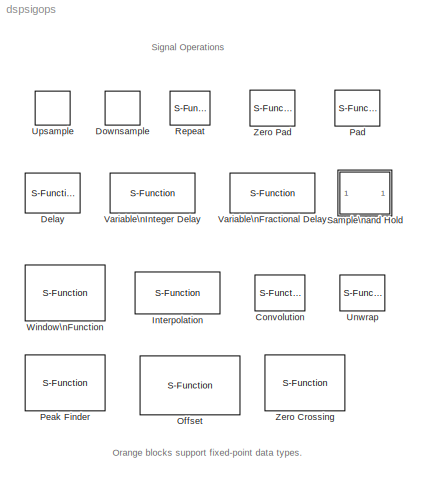
MODEL dspsigops
KIND library
BLOCK [S-Function] Convolution
  CopyFcn = dspfixptcopycallback
  DialogController = dspDDGCreate
  DialogControllerArgs = DataTag0
  FunctionName = sdspconvcorr
  MaskCallbackString = ||||||||||||||
  MaskDescription = Convolve two inputs. The block computes in the time domain or frequency domain.  To minimize the number of computations, select \"Fastest\" in the Computation domain parameter. To minimize memory use, select \"Time\" in the Computation domain parameter.
  MaskDisplay = disp('CONV')
  MaskEnableString = on,off,off,on,on,on,on,on,on,on,on,on,on,on,on
  MaskHelp = web(dspbhelp);
  MaskIconFrame = on
  MaskIconOpaque = on
  MaskIconRotate = none
  MaskIconUnits = autoscale
  MaskInitialization = dtInfo = dspblkconvcorr('init');\n\n
  MaskPromptString = Computation domain: |------- Show additional parameters -------|Allow overrides from DSP Fixed-Point Attributes blocks|Fixed-point output attributes:|Output word length:|Output fraction length:|Fixed-point accumulator attributes:|Accumulator word length:|Accumulator fraction length:|Fixed-point product output attributes:|Product output word length:|Product output fraction length:|Round integer cal...<+59ch>
  MaskSelfModifiable = on
  MaskStyleString = popup(Time|Frequency|Fastest),checkbox,checkbox,popup(Same as accumulator|Same as product output|Same as first input|Binary point scaling|Slope and bias scaling|User-defined),edit,edit,popup(Inherit via internal rule|Same as product output|Same as first input|Binary point scaling|Slope and bias scaling|User-defined),edit,edit,popup(Inherit via internal rule|Same as first input|Binary point scaling...<+86ch>
  MaskTabNameString = ,,,,,,,,,,,,,,
  MaskToolTipString = on,on,on,on,on,on,on,on,on,on,on,on,on,on,on
  MaskTunableValueString = off,off,off,off,off,off,off,off,off,off,off,off,off,off,off
  MaskType = Convolution
  MaskValueString = Time|off|on|Same as accumulator|16|15|Inherit via internal rule|32|30|Inherit via internal rule|32|30|Floor|off|off
  MaskVarAliasString = ,,,,,,,,,,,,,,
  MaskVariables = domain=@1;additionalParams=@2;allowOverrides=@3;outputMode=@4;outputWordLength=@5;outputFracLength=@6;accumMode=@7;accumWordLength=@8;accumFracLength=@9;prodOutputMode=@10;prodOutputWordLength=@11;prodOutputFracLength=@12;roundingMode=@13;overflowMode=@14;LockScale=@15;
  MaskVisibilityString = on,off,off,on,on,on,on,on,on,on,on,on,on,on,on
  Parameters = domain,0,dtInfo.prodOutputMode,dtInfo.prodOutputWordLength,dtInfo.prodOutputFracLength,dtInfo.accumMode,dtInfo.accumWordLength,dtInfo.accumFracLength,dtInfo.outputMode,dtInfo.outputWordLength,dtInfo.outputFracLength,dtInfo.roundingMode,dtInfo.overflowMode
  Ports = [2, 1]
BLOCK [S-Function] Delay
  CopyFcn = dspfixptcopycallback
  FunctionName = sdspdelay
  MaskCallbackString = dspblkdelay||dspblkdelay('icDetail')||||
  MaskDescription = Delay the discrete-time input by a specified number of samples or frames. To specify the initial conditions, select the Show additional parameters check box.
  MaskDisplay = text(0.42-dx, 0.4, 'z'); text(0.5-dx, 0.6, str);\nport_label('input',s.i1,s.i1s);\nport_label('input',s.i2,s.i2s);\n
  MaskEnableString = on,on,on,on,on,on,on
  MaskHelp = web(dspbhelp);
  MaskIconFrame = on
  MaskIconOpaque = on
  MaskIconRotate = none
  MaskIconUnits = normalized
  MaskInitialization = if (~iscell(ic)) \n	ic = double(ic);\nend	\n[str, ic] = dspblkdelay('init',&1,double(delay), ic);\ndx = 0.01*length(str);\nreset = reset_popup-1;\nif (reset == 0)\n	s.i1 = 1; s.i1s = '';\n	s.i2 = 1; s.i2s = '';\nelse\n	s.i1 = 1; s.i1s = 'In';\n	s.i2 = 2; s.i2s = 'Rst';\nend
  MaskPromptString = Delay units:|Delay (samples):|--------------- Show additional parameters ---------------|Specify different initial conditions for each channel|Specify different initial conditions within a channel|Initial conditions:|Reset port:
  MaskSelfModifiable = on
  MaskStyleString = popup(Samples|Frames),edit,checkbox,checkbox,checkbox,edit,popup(None|Rising edge|Falling edge|Either edge|Non-zero sample)
  MaskTabNameString = ,,,,,,
  MaskToolTipString = on,on,on,on,on,on,on
  MaskTunableValueString = off,off,off,off,off,off,off
  MaskType = Delay
  MaskValueString = Sample|1|off|off|off|0|None
  MaskVarAliasString = ,,,,,,
  MaskVariables = dly_unit=@1;delay=@2;ic_detail=@3;dif_ic_for_ch=@4;dif_ic_for_dly=@5;ic=@6;reset_popup=@7;
  MaskVisibilityString = on,on,on,off,off,off,off
  Parameters = dly_unit, delay, ic_detail, dif_ic_for_ch, dif_ic_for_dly, ic, reset
  Ports = [1, 1]
BLOCK [S-Function] Downsample
  CopyFcn = dspfixptcopycallback
  FunctionName = sdspdsamp2
  MaskCallbackString = ||||
  MaskDescription = Downsample by an integer  factor.  Optional sample offset must be an integer value in range (0, K-1).
  MaskDisplay = plot(x,y);\ntext(.6,.4,s);
  MaskEnableString = on,on,on,on,on
  MaskHelp = web(dspbhelp);
  MaskIconFrame = on
  MaskIconOpaque = on
  MaskIconRotate = none
  MaskIconUnits = autoscale
  MaskInitialization = [s,x,y] = dspblkdsamp2('icon',N, &1);
  MaskPromptString = Downsample factor, K:|Sample offset (0 to K-1):|Initial condition:|Sample-based mode:|Frame-based mode:
  MaskSelfModifiable = on
  MaskStyleString = edit,edit,edit,popup(Allow multirate|Force single rate),popup(Maintain input frame size|Maintain input frame rate)
  MaskTabNameString = ,,,,
  MaskToolTipString = on,on,on,on,on
  MaskTunableValueString = off,off,off,off,off
  MaskType = Downsample
  MaskValueString = 2|0|0|Allow multirate|Maintain input frame size
  MaskVarAliasString = ,,,,
  MaskVariables = N=@1;phase=@2;ic=@3;smode=@4;fmode=@5;
  MaskVisibilityString = on,on,on,on,on
  Parameters = N,phase,ic,smode,fmode
  Ports = [1, 1]
BLOCK [S-Function] Interpolation
  FunctionName = sdspinterp
  MaskCallbackString = dspblkinterp||dspblkinterp||||
  MaskDescription = Interpolate values between real-valued input samples using linear or FIR interpolation.\n\nSpecify which values to interpolate by providing a vector of interpolation points. An interpolation point of 1 refers to the first sample in the input.  To interpolate the value half-way between the second and third sample in the input, specify an interpolation point of 2.5.\n\nYou can provide the vector of ...<+187ch>
  MaskDisplay = disp('Interp')\nport_label('input',ports.port1, ports.txt1);\nport_label('input',ports.port2, ports.txt2);\nport_label('output',ports.port3, ports.txt3);\n
  MaskEnableString = on,on,on,off,off,off,on
  MaskHelp = web(dspbhelp)
  MaskIconFrame = on
  MaskIconOpaque = on
  MaskIconRotate = none
  MaskIconUnits = normalized
  MaskInitialization = ports = dspblkinterp('icon');\ninterpFilter = dspblkinterp('init', InterpR, InterpL, InterpAlpha);\n
  MaskPromptString = Source of interpolation points:|Interpolation points:|Interpolation mode:|Interpolation filter half-length:|Interpolation points per input sample:|Normalized input bandwidth (0 to 1):|Out of range interpolation points:
  MaskSelfModifiable = on
  MaskStyleString = popup(Specify via dialog|Input port),edit,popup(Linear|FIR),edit,edit,edit,popup(Clip|Clip and warn|Error)
  MaskTabNameString = ,,,,,,
  MaskToolTipString = on,on,on,on,on,on,on
  MaskTunableValueString = off,on,off,off,off,off,off
  MaskType = Interpolation
  MaskValueString = Specify via dialog|[1.1 4.8 2.67 1.6 3.2]'|Linear|3|3|0.5|Clip
  MaskVarAliasString = ,,,,,,
  MaskVariables = InterpSource=@1;InterpPoints=@2;InterpMode=@3;InterpL=@4;InterpR=@5;InterpAlpha=@6;InvalidMode=@7;
  MaskVisibilityString = on,on,on,on,on,on,on
  Parameters = InterpSource,InterpPoints,InterpMode,interpFilter,InvalidMode
  Ports = [1, 1]
BLOCK [S-Function] Offset
  CopyFcn = dspfixptcopycallback
  FunctionName = sdspoffset
  MaskCallbackString = ||dspblkoffset;||
  MaskDescription = Truncates input vectors by removing or keeping beginning or ending values. The resulting vectors are either truncated again or zero-padded to a user-specified output length.
  MaskDisplay = port_label('input',1, 'In1'); port_label('output',1, 'Out1'); port_label('input',2, 'O1'); port_label('input',3, 'In2'); port_label('output',2, 'Out2'); port_label('input',4, 'O2'); disp('Offset');
  MaskEnableString = on,on,on,off,on
  MaskHelp = web(dspbhelp);
  MaskIconFrame = on
  MaskIconOpaque = on
  MaskIconRotate = none
  MaskIconUnits = normalized
  MaskInitialization = dspblkoffset(numDatOffPair);
  MaskPromptString = Mode:|Number of input data-offset pairs:|Output port length:|Output length:|Action for out of range offset value:
  MaskSelfModifiable = on
  MaskStyleString = popup(Remove beginning samples|Remove ending samples|Keep beginning samples|Keep ending samples),edit,popup(Same as input|User-defined),edit,popup(Clip|Clip and warn|Error)
  MaskTabNameString = ,,,,
  MaskToolTipString = on,on,on,on,on
  MaskTunableValueString = off,off,on,off,off
  MaskType = Offset
  MaskValueString = Remove beginning samples|2|Same as input|9|Clip
  MaskVarAliasString = ,,,,
  MaskVariables = mode=@1;numDatOffPair=@2;outWidthSpec=@3;outWidth=@4;actionOutRange=@5;
  MaskVisibilityString = on,on,on,off,on
  Parameters = mode,numDatOffPair,outWidthSpec,outWidth,actionOutRange
  Ports = [4, 2]
BLOCK [S-Function] Pad
  CopyFcn = dspfixptcopycallback
  FunctionName = sdsppad
  MaskCallbackString = ||dspblkpad|dspblkpad||dspblkpad||
  MaskDescription = Append or prepend a constant value to the input along specified dimensions.  Truncation will occur if the specified number of output rows and/or columns is less than the corresponding input signal dimensions.
  MaskDisplay = plot(0,0,100,100,[51 44 44 51],[92 92 8 8],[73 80 80 73],[92 92 8 8],[56 68],[80 80],[56 68],[72 72],[56 68],[64 64],[56 68],[56 56],[56 68],[48 48],[56 68],[40 40],[24 24 40 36 40 36],[52 24 24 28 24 20]);\nplot([56 68],[20 20]);\nplot([58 66],[12 28],[58 66],[28 12]);
  MaskEnableString = on,on,on,on,on,off,off,on
  MaskHelp = web(dspbhelp);
  MaskIconFrame = on
  MaskIconOpaque = on
  MaskIconRotate = none
  MaskIconUnits = autoscale
  MaskPromptString = Value:|Pad signal at:|Pad along:|Number of output rows:|Specified number of output rows:|Number of output columns:|Specified number of output columns:|Action when truncation occurs:
  MaskSelfModifiable = on
  MaskStyleString = edit,popup(End|Beginning),popup(Columns|Rows|Columns and rows|None),popup(User-specified|Next power of two),edit,popup(User-specified|Next power of two),edit,popup(None|Warning|Error)
  MaskTabNameString = ,,,,,,,
  MaskToolTipString = on,on,on,on,on,on,on,on
  MaskTunableValueString = on,off,off,off,off,off,off,off
  MaskType = Pad
  MaskValueString = 1|End|Columns|User-specified|1|User-specified|1|None
  MaskVarAliasString = ,,,,,,,
  MaskVariables = padVal=@1;padSigAt=@2;padAlong=@3;padNumOutRowsSpecMethod=@4;numOutRows=@5;padNumOutColsSpecMethod=@6;numOutCols=@7;trunc_flag=@8;
  MaskVisibilityString = on,on,on,on,on,on,on,on
  Parameters = padSigAt, padAlong, numOutRows, numOutCols, padVal, trunc_flag, padNumOutRowsSpecMethod, padNumOutColsSpecMethod
  Ports = [1, 1]
BLOCK [S-Function] Peak Finder
  CopyFcn = dspfixptcopycallback
  DialogController = dspDDGCreate
  DialogControllerArgs = DataTag1
  FunctionName = sdsppeaks
  MaskCallbackString = |||||||||
  MaskDescription = Output the number of extrema (maxima and minima) in an input signal. \n\nOptionally, the block can output the extrema indices, the extrema values, \nand a binary indicator of whether or not the extrema are maxima or minima.
  MaskDisplay = disp(['Find\\n',s.txt]);\nport_label('output',s.i1,s.s1);\nport_label('output',s.i2,s.s2);\nport_label('output',1,'Cnt');\nport_label('output',s.i3,s.s3);
  MaskEnableString = on,on,on,on,on,on,off,off,on,on
  MaskHelp = web(dspbhelp)
  MaskIconFrame = on
  MaskIconOpaque = on
  MaskIconRotate = none
  MaskIconUnits = autoscale
  MaskInitialization = [s, dtInfo] = dspblkpeaks('icon',outputIdx,outputVal,polarity);\nroundingMode   = dtInfo.roundingMode;\noverflowMode   = dtInfo.overflowMode;
  MaskPromptString = Peak types:|Output peak indices|Output peak values|Maximum number of peaks to find:|Ignore peaks within threshold of neighboring values|Threshold|-------------- Show additional parameters ---------------|Allow overrides from DSP Fixed-Point Attributes blocks|Round integer calculations toward:|Saturate on integer overflow
  MaskSelfModifiable = on
  MaskStyleString = popup(Maxima|Minima|Maxima and Minima),checkbox,checkbox,edit,checkbox,edit,checkbox,checkbox,popup(Floor|Nearest),checkbox
  MaskTabNameString = ,,,,,,,,,
  MaskToolTipString = on,on,on,on,on,on,on,on,on,on
  MaskTunableValueString = on,on,on,on,on,on,off,off,off,off
  MaskType = Peak Finder
  MaskValueString = Maxima and Minima|off|off|10|off|0|off|off|Floor|off
  MaskVarAliasString = ,,,,,,,,,
  MaskVariables = polarity=@1;outputIdx=@2;outputVal=@3;maxPeaks=@4;NoiseDistinguish=@5;thresh=@6;additionalParams=@7;allowOverrides=@8;roundingMode=@9;overflowMode=@10;
  MaskVisibilityString = on,on,on,on,on,on,off,off,on,on
  Parameters = maxPeaks,polarity,NoiseDistinguish,thresh,outputIdx,outputVal,roundingMode,overflowMode
  Ports = [1, 1]
BLOCK [S-Function] Repeat
  CopyFcn = dspfixptcopycallback
  FunctionName = sdsprepeat2
  MaskCallbackString = ||
  MaskDescription = Repeat input samples N times.
  MaskDisplay = disp(s);
  MaskEnableString = on,on,on
  MaskHelp = web(dspbhelp);
  MaskIconFrame = on
  MaskIconOpaque = on
  MaskIconRotate = none
  MaskIconUnits = autoscale
  MaskInitialization = s = dspblkrepeat2('icon',N, &1);
  MaskPromptString = Repetition count:|Initial conditions:|Frame-based mode:
  MaskSelfModifiable = on
  MaskStyleString = edit,edit,popup(Maintain input frame size|Maintain input frame rate)
  MaskTabNameString = ,,
  MaskToolTipString = on,on,on
  MaskTunableValueString = off,off,off
  MaskType = Repeat
  MaskValueString = 5|0|Maintain input frame size
  MaskVarAliasString = ,,
  MaskVariables = N=@1;ic=@2;mode=@3;
  MaskVisibilityString = on,on,on
  Parameters = N,ic,mode
  Ports = [1, 1]
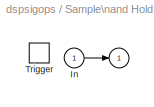
BLOCK [SubSystem] Sample\nand Hold
  CopyFcn = dspfixptcopycallback
  MaskCallbackString = |
  MaskDescription = Sample and hold input signal.
  MaskDisplay = disp('S/H')
  MaskEnableString = on,on
  MaskHelp = web(dspbhelp);
  MaskIconFrame = on
  MaskIconOpaque = off
  MaskIconRotate = none
  MaskIconUnits = autoscale
  MaskInitialization = switch trig\ncase 1, s='rising';\ncase 2, s='falling';\ncase 3, s='either';\nend\nset_param([gcb '/Trigger'],'triggertype',s);\n
  MaskPromptString = Trigger type:|Initial condition:
  MaskSelfModifiable = on
  MaskStyleString = popup(Rising edge|Falling edge|Either edge),edit
  MaskTabNameString = ,
  MaskToolTipString = on,on
  MaskTunableValueString = off,off
  MaskType = Sample and Hold
  MaskValueString = Rising edge|0
  MaskVarAliasString = ,
  MaskVariables = trig=@1;initCond=@2;
  MaskVisibilityString = on,on
  MinAlgLoopOccurrences = off
  Ports = [1, 1, 0, 1]
  PropExecContextAcrossSSBoundary = on
  RTWSystemCode = Auto
  TreatAsAtomicUnit = on
BLOCK [Outport] Sample\nand Hold/ 
  BusOutputAsStruct = off
  IconDisplay = Port number
  InitialOutput = initCond
BLOCK [Inport] Sample\nand Hold/In
  IconDisplay = Port number
  LatchInput = off
BLOCK [TriggerPort] Sample\nand Hold/Trigger
  Ports = []
  ZeroCross = off
BLOCK [S-Function] Unwrap
  FunctionName = sdspunwrap2
  MaskCallbackString = |
  MaskDescription = Adds or subtracts appropriate multiples of 2pi to each input element to \nremove phase discontinuities (unwrap). Inputs should be radian phase values.\n\nWhen the parameter \"Do not unwrap phase discontinuities between successive frames\" is unchecked, the block unwraps each input channel by considering all phase discontinuities in the channel, including those in previous frames of the channel. (F...<+409ch>
  MaskDisplay = plot(0,0,100,100,[16 16],[92 8],[8 92],[16 16],[16 48 48 80],[64 44 76 56],[64 64 58 64 70],[60 40 46 40 46],[69 82],[30 22],[],[],[52 65],[41 33])
  MaskEnableString = on,on
  MaskHelp = web(dspbhelp);
  MaskIconFrame = on
  MaskIconOpaque = on
  MaskIconRotate = none
  MaskIconUnits = autoscale
  MaskPromptString = Do not unwrap phase discontinuities between successive frames|Tolerance (radians):
  MaskStyleString = checkbox,edit
  MaskTabNameString = ,
  MaskToolTipString = on,on
  MaskTunableValueString = off,off
  MaskType = Unwrap
  MaskValueString = off|pi
  MaskVarAliasString = ,
  MaskVariables = running=@1;tol=@2;
  MaskVisibilityString = on,on
  Parameters = tol, running
  Ports = [1, 1]
BLOCK [S-Function] Upsample
  CopyFcn = dspfixptcopycallback
  FunctionName = sdspupsamp2
  MaskCallbackString = |||
  MaskDescription = Upsample by inserting L-1 zeros between input samples.  Optional sample offset must be an integer value in range (0, L-1).
  MaskDisplay = plot(x,y)\ntext(.6,.4,s);\n
  MaskEnableString = on,on,on,on
  MaskHelp = web(dspbhelp);
  MaskIconFrame = on
  MaskIconOpaque = on
  MaskIconRotate = none
  MaskIconUnits = autoscale
  MaskInitialization = [s,x,y] = dspblkupsamp2('icon',N, &1);
  MaskPromptString = Upsample factor, L:|Sample offset (0 to L-1):|Initial condition:|Frame-based mode:
  MaskSelfModifiable = on
  MaskStyleString = edit,edit,edit,popup(Maintain input frame size|Maintain input frame rate)
  MaskTabNameString = ,,,
  MaskToolTipString = on,on,on,on
  MaskTunableValueString = off,off,off,off
  MaskType = Upsample
  MaskValueString = 3|0|0|Maintain input frame size
  MaskVarAliasString = ,,,
  MaskVariables = N=@1;phase=@2;ic=@3;mode=@4;
  MaskVisibilityString = on,on,on,on
  Parameters = N,phase,ic,mode
  Ports = [1, 1]
BLOCK [S-Function] Variable\nFractional Delay
  FunctionName = sdspvfdly2
  MaskCallbackString = dspblkvfdly2;|||||
  MaskDescription = Delay discrete-time input by a time-varying fractional number of sample periods, as specified by the \"delay\" input.  The FIR filter is designed using \"intfilt\" from the Signal Processing Toolbox.
  MaskDisplay = text(0.5,0.4,'z','horiz','right')\ntext(0.5,0.6,'-f','horiz','left')\nport_label('input',1,'In')\nport_label('input',2,'Delay')\nport_label('output',1,'Out')\n
  MaskEnableString = on,on,on,on,on,on
  MaskHelp = web(dspbhelp);
  MaskIconFrame = on
  MaskIconOpaque = on
  MaskIconRotate = none
  MaskIconUnits = normalized
  MaskInitialization = [b,str] = dspblkvfdly2(mode,R,L,alpha);\n
  MaskPromptString = Mode:|Maximum delay (samples):|Interpolation filter half-length:|Interpolation points per input sample:|Normalized input bandwidth (0 to 1):|Initial conditions:
  MaskStyleString = popup(Linear Interpolation|FIR Interpolation),edit,edit,edit,edit,edit
  MaskTabNameString = ,,,,,
  MaskToolTipString = on,on,on,on,on,on
  MaskTunableValueString = off,off,off,off,off,off
  MaskType = Variable Fractional Delay
  MaskValueString = Linear Interpolation|100|4|10|1|0
  MaskVarAliasString = ,,,,,
  MaskVariables = mode=@1;dmax=@2;L=@3;R=@4;alpha=@5;ic=@6;
  MaskVisibilityString = on,on,off,off,off,on
  Parameters = mode,dmax,b,ic
  Ports = [2, 1]
BLOCK [S-Function] Variable\nInteger Delay
  CopyFcn = dspfixptcopycallback
  FunctionName = sdspvidly2
  MaskCallbackString = |
  MaskDescription = Delay discrete-time input by a time-varying integer number of sample periods specified by the \"delay\" input.
  MaskDisplay = text(0.5,0.4,'z','horiz','right')\ntext(0.5,0.6,'-i','horiz','left')\nport_label('input',1,'In')\nport_label('input',2,'Delay')\nport_label('output',1,'Out')\n
  MaskEnableString = on,on
  MaskHelp = web(dspbhelp);
  MaskIconFrame = on
  MaskIconOpaque = on
  MaskIconRotate = none
  MaskIconUnits = normalized
  MaskPromptString = Maximum delay (samples):|Initial conditions:
  MaskSelfModifiable = on
  MaskStyleString = edit,edit
  MaskTabNameString = ,
  MaskToolTipString = on,on
  MaskTunableValueString = off,off
  MaskType = Variable Integer Delay
  MaskValueString = 100|0
  MaskVarAliasString = ,
  MaskVariables = dmax=@1;ic=@2;
  MaskVisibilityString = on,on
  Parameters = dmax,ic
  Ports = [2, 1]
BLOCK [S-Function] Window\nFunction
  CopyFcn = dspfixptcopycallback
  DialogController = dspDDGCreate
  DialogControllerArgs = DataTag2
  FunctionName = sdspwindow2
  MaskCallbackString = ||||||||||||||||||||||||||||||
  MaskDescription = Generate a window function and/or apply a window function to an input signal.  \n\nFor some fixed-point modes, the fraction length or slope of the window values is automatically set for you to the best possible precision given the real-world values and word length of the window values. This is equivalent to the ''Best Precision: Matrix-wise'' scaling option used in some Simulink fixed-point blocks...<+1ch>
  MaskDisplay = plot(x,y); text(.2,.85,str);\nport_label(ports(1).type,ports(1).port,ports(1).txt);\nport_label(ports(2).type,ports(2).port,ports(2).txt);\nport_label(ports(3).type,ports(3).port,ports(3).txt);\n
  MaskEnableString = on,on,on,on,on,on,on,on,on,on,on,off,off,on,on,on,on,on,on,on,on,on,on,on,on,on,on,on,on,on,on
  MaskHelp = web(dspbhelp);\n
  MaskIconFrame = on
  MaskIconOpaque = on
  MaskIconRotate = none
  MaskIconUnits = normalized
  MaskInitialization = [x,y,str,ports,w,dtInfo,dTypeID,fixptInfo]=dspblkwinfcn2('init');\n
  MaskPromptString = Operation:|Window type:|Sample mode: |Sample time:|Window length:|Stopband attenuation in dB:|Beta:|Sampling:|Window function name:|Additional parameters for user defined window|Window function parameters:|------- Show additional parameters --------|Allow overrides from DSP Fixed-Point Attributes blocks|Output data type:|Signed|Word length:|User-defined data type  (e.g. sfix(16), float('single')):...<+378ch>
  MaskSelfModifiable = on
  MaskStyleString = popup(Apply window to input|Generate window|Generate and apply window),popup(Bartlett|Blackman|Boxcar|Chebyshev|Hamming|Hann|Hanning|Kaiser|Triang|User defined),popup(Discrete|Continuous),edit,edit,edit,edit,popup(Symmetric|Periodic),edit,checkbox,edit,checkbox,checkbox,popup(double|single|Fixed-point|User-defined|Inherit via back propagation),checkbox,edit,edit,popup(Best precision|User-defined),...<+388ch>
  MaskTabNameString = ,,,,,,,,,,,,,,,,,,,,,,,,,,,,,,
  MaskToolTipString = on,on,on,on,on,on,on,on,on,on,on,on,on,on,on,on,on,on,on,on,on,on,on,on,on,on,on,on,on,on,on
  MaskTunableValueString = off,on,off,off,off,on,on,on,off,off,off,off,off,off,off,off,off,off,off,off,off,off,off,off,off,off,off,off,off,off,off
  MaskType = Window Function
  MaskValueString = Apply window to input|Hamming|Continuous|1|64|50|10|Symmetric|hamming|off|{'symmetric'}|off|on|double|on|16|sfix(16)|Best precision|15|Same word length as input|16|15|Inherit via internal rule|16|15|Same as product output|16|15|Floor|off|off
  MaskVarAliasString = ,,,,,,,,,,,,,,,,,,,,,,,,,,,,,,
  MaskVariables = winmode=@1;wintype=@2;sampmode=@3;samptime=@4;N=@5;Rs=@6;beta=@7;winsamp=@8;UserWindow=&9;OptParams=@10;UserParams=@11;additionalParams=@12;allowOverrides=@13;dataType=@14;isSigned=@15;wordLen=@16;udDataType=@17;fracBitsMode=@18;numFracBits=@19;firstCoeffMode=@20;firstCoeffWordLength=@21;firstCoeffFracLength=@22;prodOutputMode=@23;prodOutputWordLength=@24;prodOutputFracLength=@25;outputMode=@26;ou...<+88ch>
  MaskVisibilityString = on,on,on,on,on,on,on,on,on,on,on,off,off,on,on,on,on,on,on,on,on,on,on,on,on,on,on,on,on,on,on
  Parameters = winmode,N,sampmode,samptime, dtInfo.DataTypeIsCustomFloat,dtInfo.DataTypeIsSigned,dTypeID,dtInfo.DataTypeWordLength,dtInfo.DataTypeFracOrMantBits,fixptInfo.firstCoeffMode,fixptInfo.firstCoeffWordLength,fixptInfo.firstCoeffFracLength,fixptInfo.prodOutputMode,fixptInfo.prodOutputWordLength,fixptInfo.prodOutputFracLength,fixptInfo.outputMode,fixptInfo.outputWordLength,fixptInfo.outputFracLength,fixpt...<+40ch>
  Ports = [1, 1]
BLOCK [S-Function] Zero Crossing
  CopyFcn = dspfixptcopycallback
  FunctionName = sdspzc
  MaskDescription = Counts the number of zero crossings in a signal.\n
  MaskDisplay = disp(['Zero\\nCrossing']);\nport_label('output',1,'Cnt');
  MaskHelp = web(dspbhelp)
  MaskIconFrame = on
  MaskIconOpaque = on
  MaskIconRotate = none
  MaskIconUnits = autoscale
  MaskSelfModifiable = on
  MaskType = Zero Crossing
  Parameters = 1,1
  Ports = [1, 1]
BLOCK [S-Function] Zero Pad
  CopyFcn = dspfixptcopycallback
  FunctionName = sdsppad
  MaskCallbackString = |dspblkzpad2|dspblkzpad2||dspblkzpad2||
  MaskDescription = Append or prepend zeros to the input along specified dimensions.  Truncation will occur if the specified number of output rows and/or columns is less than the corresponding input signal dimensions.
  MaskDisplay = plot(0,0,100,100,[51 44 44 51],[92 92 8 8],[73 80 80 73],[92 92 8 8],[56 68],[80 80],[56 68],[72 72],[56 68],[64 64],[56 68],[56 56],[56 68],[48 48],[56 68],[40 40],[64 60 56 55 56 60 64 68 69 68 64],[32 32 28 22 16 12 12 16 22 28 32],[24 24 40 36 40 36],[52 24 24 28 24 20])
  MaskEnableString = on,on,on,on,off,off,on
  MaskHelp = web(dspbhelp);
  MaskIconFrame = on
  MaskIconOpaque = on
  MaskIconRotate = none
  MaskIconUnits = autoscale
  MaskPromptString = Pad signal at:|Pad along:|Number of output rows:|Specified number of output rows:|Number of output columns:|Specified number of output columns:|Action when truncation occurs:
  MaskSelfModifiable = on
  MaskStyleString = popup(End|Beginning),popup(Columns|Rows|Columns and rows|None),popup(User-specified|Next power of two),edit,popup(User-specified|Next power of two),edit,popup(None|Warning|Error)
  MaskTabNameString = ,,,,,,
  MaskToolTipString = on,on,on,on,on,on,on
  MaskTunableValueString = off,off,off,off,off,off,off
  MaskType = Zero Pad
  MaskValueString = End|Columns|User-specified|1|User-specified|1|None
  MaskVarAliasString = ,,,,,,
  MaskVariables = padSigAt=@1;zpadAlong=@2;padNumOutRowsSpecMethod=@3;numOutRows=@4;padNumOutColsSpecMethod=@5;numOutCols=@6;trunc_flag=@7;
  MaskVisibilityString = on,on,on,on,on,on,on
  Parameters = padSigAt, zpadAlong, numOutRows, numOutCols, 0, trunc_flag, padNumOutRowsSpecMethod, padNumOutColsSpecMethod
  Ports = [1, 1]
ANNOTATION (root): Orange blocks support fixed-point data types.
ANNOTATION (root): Signal Operations
LINE Sample\nand Hold/In:1 -> Sample\nand Hold/ :1
